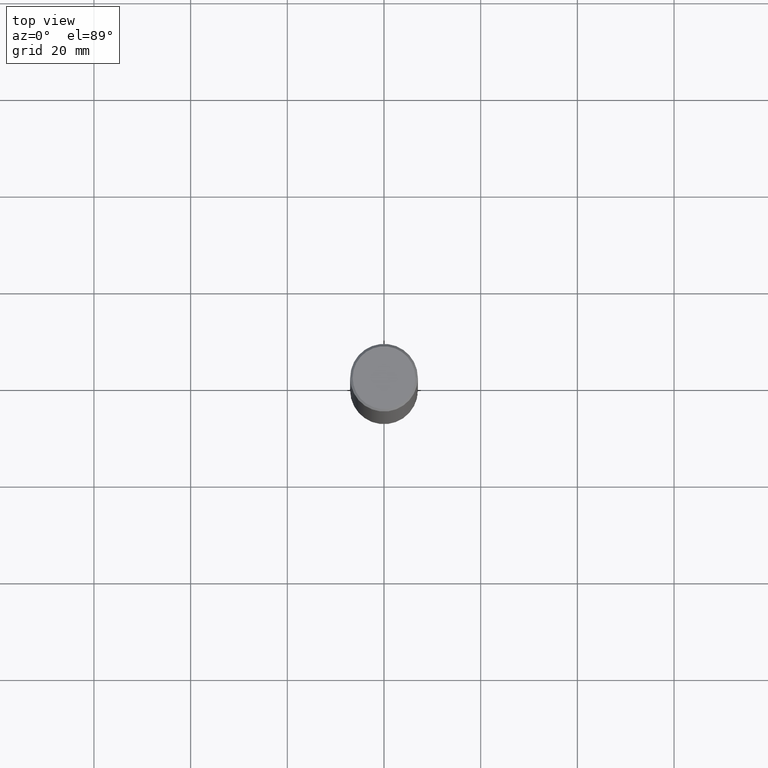
[diagram: clean part render]
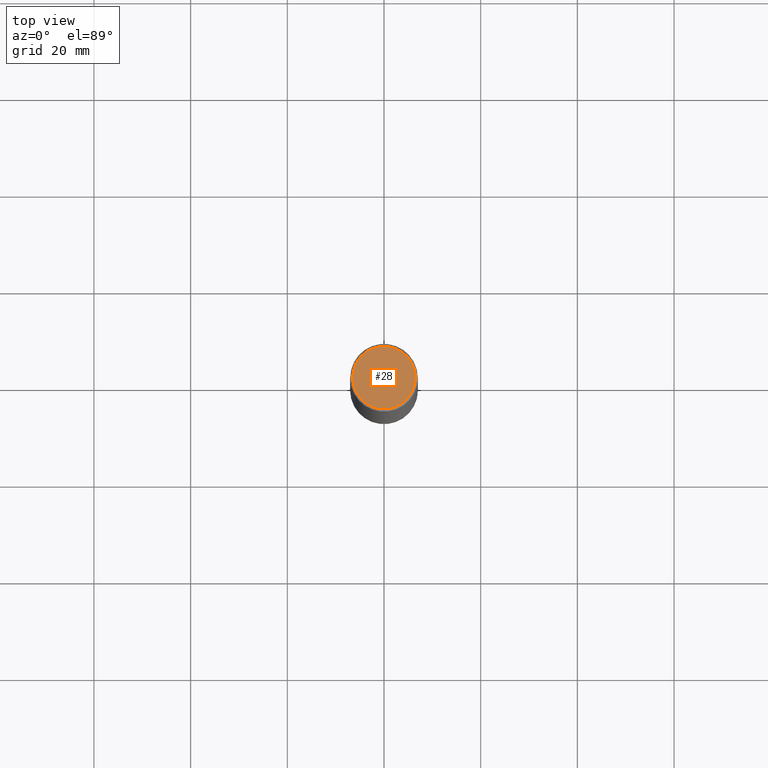
[diagram: same view with one face highlighted and labeled with its STEP entity id]
A machine part, top view. The second image highlights one B-rep face of the part: STEP entity #28.
In plain terms, the highlighted planar face has unit normal (0, -0, -1).
Its self-contained STEP definition (entity closure, byte-faithful):
#7 = CARTESIAN_POINT ( 'NONE',  ( 0.2555999999999996608, -1.857063081596548059E-15, 4.268512490113146298E-18 ) ) ;
#27 = VERTEX_POINT ( 'NONE', #56 ) ;
#28 = ADVANCED_FACE ( 'NONE', ( #200 ), #312, .F. ) ;
#48 = DIRECTION ( 'NONE',  ( -2.445468806185136597E-29, 3.491481338843145583E-15, 1.000000000000000000 ) ) ;
#52 = CARTESIAN_POINT ( 'NONE',  ( 1.784845260416607174E-15, 0.2555999999999996608, -8.902883739632567265E-16 ) ) ;
#56 = CARTESIAN_POINT ( 'NONE',  ( -0.2555999999999996608, 1.819760073805038823E-15, 4.268512490087807223E-18 ) ) ;
#87 = CIRCLE ( 'NONE', #142, 0.2555999999999996608 ) ;
#97 = DIRECTION ( 'NONE',  ( -2.445468806185136597E-29, 3.491481338843145583E-15, 1.000000000000000000 ) ) ;
#105 = EDGE_LOOP ( 'NONE', ( #152, #299 ) ) ;
#118 = EDGE_CURVE ( 'NONE', #27, #156, #87, .T. ) ;
#138 = EDGE_CURVE ( 'NONE', #156, #27, #280, .T. ) ;
#142 = AXIS2_PLACEMENT_3D ( 'NONE', #237, #97, #272 ) ;
#152 = ORIENTED_EDGE ( 'NONE', *, *, #118, .T. ) ;
#156 = VERTEX_POINT ( 'NONE', #7 ) ;
#175 = DIRECTION ( 'NONE',  ( 2.438088387897960049E-29, -3.491481338843145188E-15, -1.000000000000000000 ) ) ;
#200 = FACE_OUTER_BOUND ( 'NONE', #105, .T. ) ;
#230 = AXIS2_PLACEMENT_3D ( 'NONE', #52, #175, #261 ) ;
#237 = CARTESIAN_POINT ( 'NONE',  ( -1.043851414335219820E-46, 1.490343170380447200E-32, 4.268512490100411279E-18 ) ) ;
#261 = DIRECTION ( 'NONE',  ( -1.000000000000000000, 6.982962677686265922E-15, -4.876176775795935793E-29 ) ) ;
#265 = DIRECTION ( 'NONE',  ( 1.000000000000000000, -6.982962677686267499E-15, 4.876201967404968863E-29 ) ) ;
#272 = DIRECTION ( 'NONE',  ( 1.000000000000000000, -6.982962677686267499E-15, 4.876201967404968863E-29 ) ) ;
#275 = AXIS2_PLACEMENT_3D ( 'NONE', #334, #48, #265 ) ;
#280 = CIRCLE ( 'NONE', #275, 0.2555999999999996608 ) ;
#299 = ORIENTED_EDGE ( 'NONE', *, *, #138, .T. ) ;
#312 = PLANE ( 'NONE',  #230 ) ;
#334 = CARTESIAN_POINT ( 'NONE',  ( -1.043851414335219820E-46, 1.490343170380447200E-32, 4.268512490100411279E-18 ) ) ;